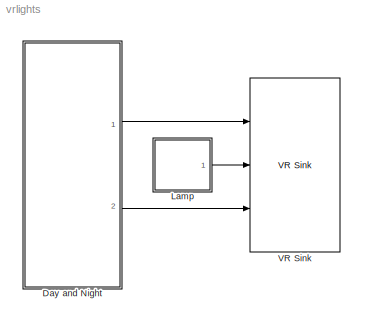
MODEL vrlights
KIND model
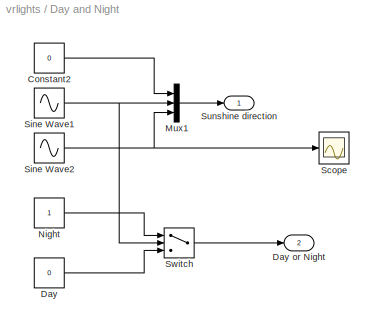
BLOCK [SubSystem] Day and Night
  EnableExecutionContextPropagation = on
  MinAlgLoopOccurrences = off
  Ports = [0, 2]
  TreatAsAtomicUnit = off
BLOCK [Constant] Day and Night/Constant2
  Value = 0
BLOCK [Constant] Day and Night/Day
  Value = 0
BLOCK [Outport] Day and Night/Day or Night
  IconDisplay = Port number
  Port = 2
BLOCK [Mux] Day and Night/Mux1
  DisplayOption = bar
  Inputs = 3
  Ports = [3, 1]
BLOCK [Constant] Day and Night/Night
BLOCK [Scope] Day and Night/Scope
  DataFormat = StructureWithTime
  NumInputPorts = 1
  Ports = [1]
BLOCK [Sin] Day and Night/Sine Wave1
  Frequency = 0.03
  Phase = -1.57
  Ports = [0, 1]
  SampleTime = 0
  SineType = Time based
BLOCK [Sin] Day and Night/Sine Wave2
  Frequency = 0.03
  Ports = [0, 1]
  SampleTime = 0
  SineType = Time based
BLOCK [Outport] Day and Night/Sunshine direction
  IconDisplay = Port number
BLOCK [Switch] Day and Night/Switch
  SaturateOnIntegerOverflow = off
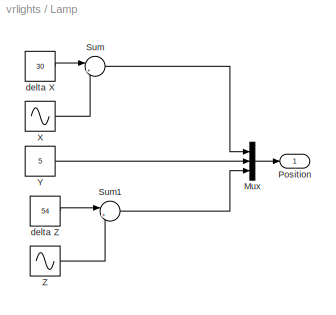
BLOCK [SubSystem] Lamp
  EnableExecutionContextPropagation = on
  MinAlgLoopOccurrences = off
  Ports = [0, 1]
  TreatAsAtomicUnit = off
BLOCK [Mux] Lamp/Mux
  DisplayOption = bar
  Inputs = 3
  Ports = [3, 1]
BLOCK [Outport] Lamp/Position
  IconDisplay = Port number
BLOCK [Sum] Lamp/Sum
  IconShape = round
  Inputs = |++
  Ports = [2, 1]
BLOCK [Sum] Lamp/Sum1
  IconShape = round
  Inputs = |++
  Ports = [2, 1]
BLOCK [Sin] Lamp/X
  Amplitude = 20
  Frequency = 0.065
  Ports = [0, 1]
  SampleTime = 0
  SineType = Time based
BLOCK [Constant] Lamp/Y
  Value = 5
BLOCK [Sin] Lamp/Z
  Amplitude = 24
  Frequency = 0.05
  Ports = [0, 1]
  SampleTime = 0
  SineType = Time based
BLOCK [Constant] Lamp/delta X
  Value = 30
BLOCK [Constant] Lamp/delta Z
  Value = 54
BLOCK [Reference] VR Sink  REF=vrlib/VR Sink
  AutoView = on
  FieldsWritten = Sun.direction.3.1.double#Lamp.location.3.1.double#Lamp.on.1.1.logical
  Ports = [3]
  RemoteChange = off
  RemoteView = off
  SampleTime = 0.1
  SourceBlock = vrlib/VR Sink
  SourceType = Virtual Reality Sink
  ViewEnable = on
  WorldFileName = vrlights.wrl
LINE Day and Night/Constant2:1 -> Day and Night/Mux1:1
LINE Day and Night/Day:1 -> Day and Night/Switch:3
LINE Day and Night/Mux1:1 -> Day and Night/Sunshine direction:1
LINE Day and Night/Night:1 -> Day and Night/Switch:1
NET Day and Night/Sine Wave1:1 -> Day and Night/Mux1:2, Day and Night/Switch:2
NET Day and Night/Sine Wave2:1 -> Day and Night/Mux1:3, Day and Night/Scope:1
LINE Day and Night/Switch:1 -> Day and Night/Day or Night:1
LINE Day and Night:1 -> VR Sink:1
LINE Day and Night:2 -> VR Sink:3
LINE Lamp/Mux:1 -> Lamp/Position:1
LINE Lamp/Sum1:1 -> Lamp/Mux:3
LINE Lamp/Sum:1 -> Lamp/Mux:1
LINE Lamp/X:1 -> Lamp/Sum:2
LINE Lamp/Y:1 -> Lamp/Mux:2
LINE Lamp/Z:1 -> Lamp/Sum1:2
LINE Lamp/delta X:1 -> Lamp/Sum:1
LINE Lamp/delta Z:1 -> Lamp/Sum1:1
LINE Lamp:1 -> VR Sink:2
note: NET lines group one-source signal fan-out (src -> all destinations, sorted); 1:1 wires keep LINE
